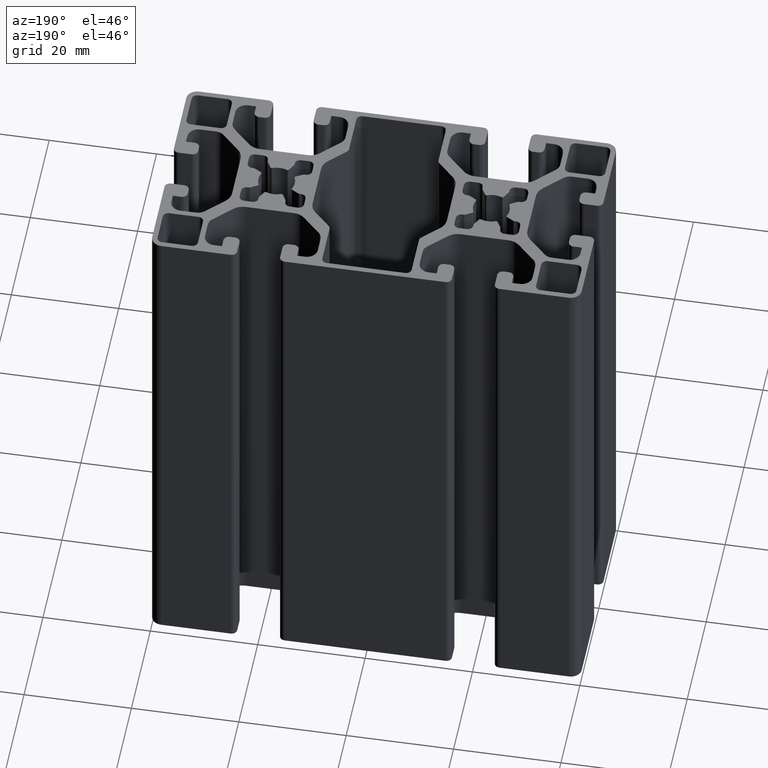
[diagram: clean part render]
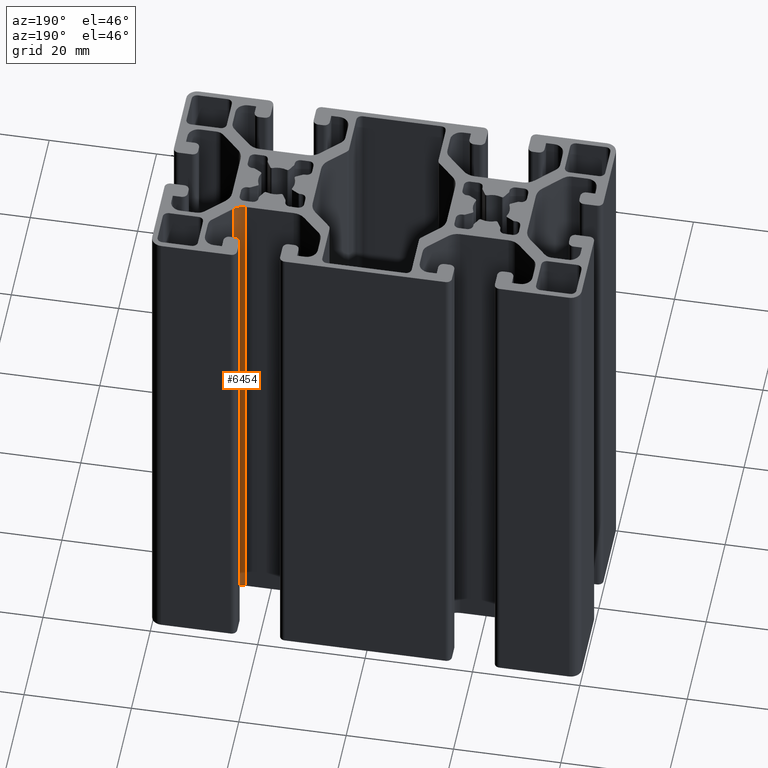
[diagram: same view with one face highlighted and labeled with its STEP entity id]
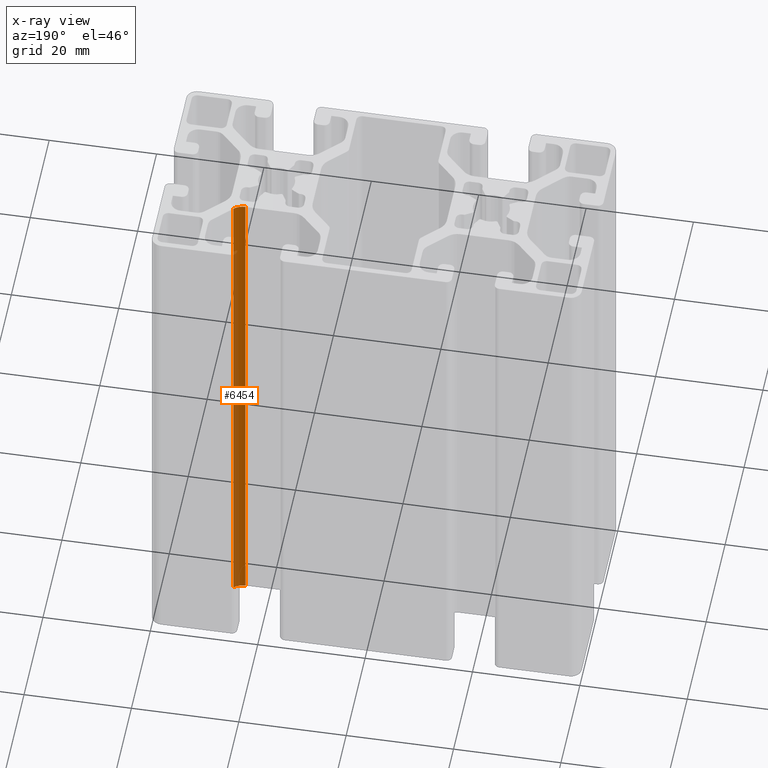
[diagram: x-ray of the same camera — body ghosted, the highlighted face saturated]
A machine part, auxiliary view. The second image highlights one B-rep face of the part: STEP entity #6454.
The next image is the same camera in x-ray: the body ghosted, the highlighted face saturated — about 37% of this face is hidden behind the body in this view.
In plain terms, the highlighted cylindrical surface (edge-blend (fillet) strip) has radius 3 mm, axis along (0, 0, 1).
Its self-contained STEP definition (entity closure, byte-faithful):
#127=CIRCLE('',#6889,3.);
#128=CIRCLE('',#6890,3.);
#414=CYLINDRICAL_SURFACE('',#6888,3.);
#634=FACE_OUTER_BOUND('',#968,.T.);
#968=EDGE_LOOP('',(#4599,#4600,#4601,#4602));
#1422=LINE('',#9978,#2082);
#1424=LINE('',#9984,#2084);
#2082=VECTOR('',#7966,100.);
#2084=VECTOR('',#7972,100.);
#2743=VERTEX_POINT('',#9975);
#2744=VERTEX_POINT('',#9977);
#2745=VERTEX_POINT('',#9981);
#2746=VERTEX_POINT('',#9983);
#3504=EDGE_CURVE('',#2744,#2743,#1422,.T.);
#3506=EDGE_CURVE('',#2745,#2743,#127,.T.);
#3507=EDGE_CURVE('',#2746,#2745,#1424,.T.);
#3508=EDGE_CURVE('',#2744,#2746,#128,.T.);
#4599=ORIENTED_EDGE('',*,*,#3506,.F.);
#4600=ORIENTED_EDGE('',*,*,#3507,.F.);
#4601=ORIENTED_EDGE('',*,*,#3508,.F.);
#4602=ORIENTED_EDGE('',*,*,#3504,.T.);
#6454=ADVANCED_FACE('',(#634),#414,.F.);
#6888=AXIS2_PLACEMENT_3D('',#9980,#7968,#7969);
#6889=AXIS2_PLACEMENT_3D('',#9982,#7970,#7971);
#6890=AXIS2_PLACEMENT_3D('',#9985,#7973,#7974);
#7966=DIRECTION('',(0.,0.,1.));
#7968=DIRECTION('center_axis',(0.,0.,1.));
#7969=DIRECTION('ref_axis',(-2.96059473233374E-15,-1.,0.));
#7970=DIRECTION('center_axis',(0.,0.,-1.));
#7971=DIRECTION('ref_axis',(-2.96059473233374E-15,-1.,0.));
#7972=DIRECTION('',(0.,0.,1.));
#7973=DIRECTION('center_axis',(0.,0.,1.));
#7974=DIRECTION('ref_axis',(-2.96059473233374E-15,-1.,0.));
#9975=CARTESIAN_POINT('',(24.4895923599143,7.5,100.));
#9977=CARTESIAN_POINT('',(24.4895923599143,7.5,0.));
#9978=CARTESIAN_POINT('',(24.4895923599143,7.5,0.));
#9980=CARTESIAN_POINT('Origin',(24.4895923599144,10.5,0.));
#9981=CARTESIAN_POINT('',(26.610912703474,8.37867965644034,100.));
#9982=CARTESIAN_POINT('Origin',(24.4895923599144,10.5,100.));
#9983=CARTESIAN_POINT('',(26.610912703474,8.37867965644034,0.));
#9984=CARTESIAN_POINT('',(26.610912703474,8.37867965644034,0.));
#9985=CARTESIAN_POINT('Origin',(24.4895923599144,10.5,0.));